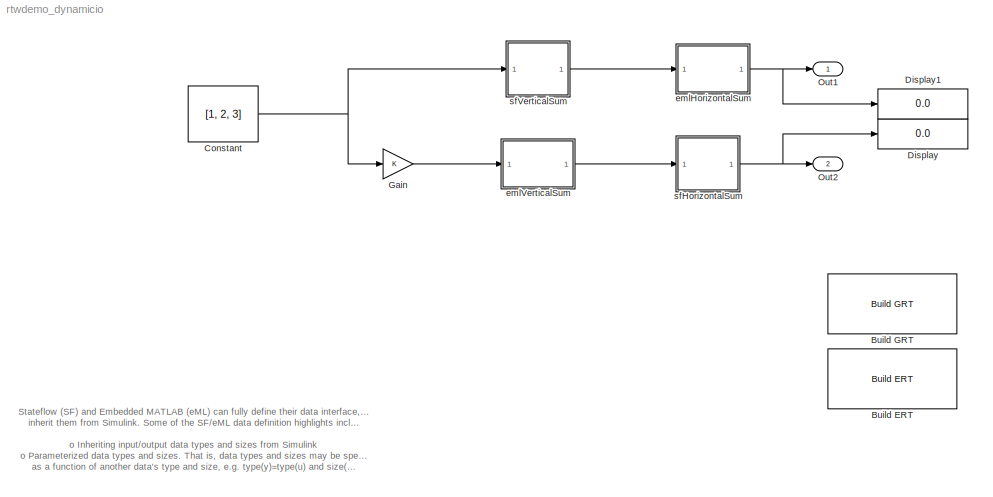
MODEL rtwdemo_dynamicio
KIND model
CONFIG PostLoadFcn = clear;K=Simulink.Parameter;K.Value=2;K.RTWInfo.StorageClass='SimulinkGlobal';
BLOCK [Reference] Build ERT  REF=rtwdemowidgets/Build ERT
  Ports = []
  ShowPortLabels = on
  SourceBlock = rtwdemowidgets/Build ERT
  attrib_overrides = {}
BLOCK [Reference] Build GRT  REF=rtwdemowidgets/Build GRT
  Ports = []
  ShowPortLabels = on
  SourceBlock = rtwdemowidgets/Build GRT
  attrib_overrides = {}
BLOCK [Constant] Constant
  OutDataTypeMode = single
  Value = [1, 2, 3]
  VectorParams1D = off
BLOCK [Display] Display
  Decimation = 1
  Ports = [1]
BLOCK [Display] Display1
  Decimation = 1
  Ports = [1]
BLOCK [Gain] Gain
  Gain = K
  SaturateOnIntegerOverflow = off
BLOCK [Outport] Out1
  BusOutputAsStruct = off
  IconDisplay = Port number
BLOCK [Outport] Out2
  BusOutputAsStruct = off
  IconDisplay = Port number
  Port = 2
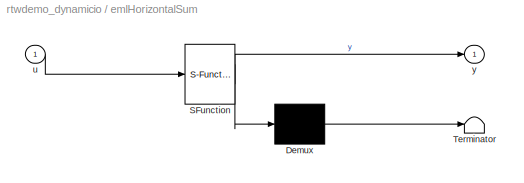
BLOCK [SubSystem] emlHorizontalSum
  MaskDescription = Embedded MATLAB block
  MaskDisplay = disp('fcn');
  MaskIconFrame = on
  MaskIconOpaque = off
  MaskIconRotate = none
  MaskIconUnits = autoscale
  MaskSelfModifiable = on
  MaskType = Stateflow
  MinAlgLoopOccurrences = off
  Ports = [1, 1]
  PropExecContextAcrossSSBoundary = on
  RTWSystemCode = Auto
  TreatAsAtomicUnit = off
BLOCK [Demux] emlHorizontalSum/ Demux 
  Outputs = 1
  Ports = [1, 1]
BLOCK [S-Function] emlHorizontalSum/ SFunction 
  FunctionName = sf_sfun
  PortCounts = [1 2]
  Ports = [1, 2]
  Tag = Stateflow S-Function rtwdemo_dynamicio 1
BLOCK [Terminator] emlHorizontalSum/ Terminator 
BLOCK [Inport] emlHorizontalSum/u
  IconDisplay = Port number
  LatchInput = off
  Port = 1
BLOCK [Outport] emlHorizontalSum/y
  BusOutputAsStruct = off
  IconDisplay = Port number
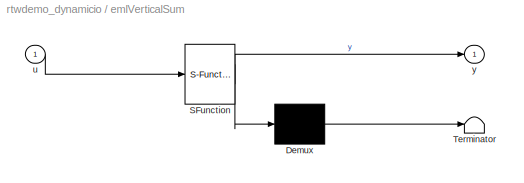
BLOCK [SubSystem] emlVerticalSum
  MaskDescription = Embedded MATLAB block
  MaskDisplay = disp('fcn');
  MaskIconFrame = on
  MaskIconOpaque = off
  MaskIconRotate = none
  MaskIconUnits = autoscale
  MaskSelfModifiable = on
  MaskType = Stateflow
  MinAlgLoopOccurrences = off
  Ports = [1, 1]
  PropExecContextAcrossSSBoundary = on
  RTWSystemCode = Auto
  TreatAsAtomicUnit = off
BLOCK [Demux] emlVerticalSum/ Demux 
  Outputs = 1
  Ports = [1, 1]
BLOCK [S-Function] emlVerticalSum/ SFunction 
  FunctionName = sf_sfun
  PortCounts = [1 2]
  Ports = [1, 2]
  Tag = Stateflow S-Function rtwdemo_dynamicio 2
BLOCK [Terminator] emlVerticalSum/ Terminator 
BLOCK [Inport] emlVerticalSum/u
  IconDisplay = Port number
  LatchInput = off
  Port = 1
BLOCK [Outport] emlVerticalSum/y
  BusOutputAsStruct = off
  IconDisplay = Port number
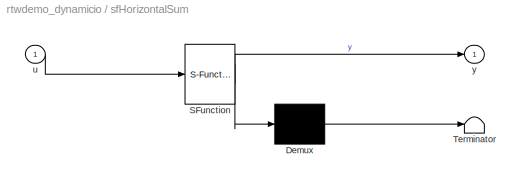
BLOCK [SubSystem] sfHorizontalSum
  MaskDescription = Stateflow diagram
  MaskDisplay = plot(sf('Private','sfblk','xIcon'),sf('Private','sfblk','yIcon'));text(0.5,0,sf('Private', 'sfblk', 'tIcon'),'HorizontalAl','Center','VerticalAl','Bottom');
  MaskIconFrame = off
  MaskIconOpaque = off
  MaskIconRotate = none
  MaskIconUnits = autoscale
  MaskSelfModifiable = on
  MaskType = Stateflow
  MinAlgLoopOccurrences = off
  Ports = [1, 1]
  PropExecContextAcrossSSBoundary = on
  RTWSystemCode = Auto
  TreatAsAtomicUnit = off
BLOCK [Demux] sfHorizontalSum/ Demux 
  Outputs = 1
  Ports = [1, 1]
BLOCK [S-Function] sfHorizontalSum/ SFunction 
  FunctionName = sf_sfun
  PortCounts = [1 2]
  Ports = [1, 2]
  Tag = Stateflow S-Function rtwdemo_dynamicio 4
BLOCK [Terminator] sfHorizontalSum/ Terminator 
BLOCK [Inport] sfHorizontalSum/u
  IconDisplay = Port number
  LatchInput = off
  Port = 1
BLOCK [Outport] sfHorizontalSum/y
  BusOutputAsStruct = off
  IconDisplay = Port number
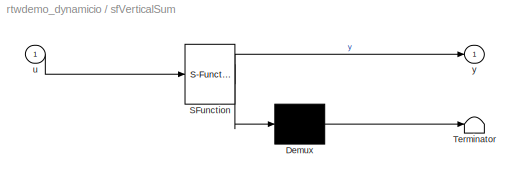
BLOCK [SubSystem] sfVerticalSum
  MaskDescription = Stateflow diagram
  MaskDisplay = plot(sf('Private','sfblk','xIcon'),sf('Private','sfblk','yIcon'));text(0.5,0,sf('Private', 'sfblk', 'tIcon'),'HorizontalAl','Center','VerticalAl','Bottom');
  MaskIconFrame = off
  MaskIconOpaque = off
  MaskIconRotate = none
  MaskIconUnits = autoscale
  MaskSelfModifiable = on
  MaskType = Stateflow
  MinAlgLoopOccurrences = off
  Ports = [1, 1]
  PropExecContextAcrossSSBoundary = on
  RTWSystemCode = Auto
  TreatAsAtomicUnit = off
BLOCK [Demux] sfVerticalSum/ Demux 
  Outputs = 1
  Ports = [1, 1]
BLOCK [S-Function] sfVerticalSum/ SFunction 
  FunctionName = sf_sfun
  Parameters = K
  PortCounts = [1 2]
  Ports = [1, 2]
  Tag = Stateflow S-Function rtwdemo_dynamicio 5
BLOCK [Terminator] sfVerticalSum/ Terminator 
BLOCK [Inport] sfVerticalSum/u
  IconDisplay = Port number
  LatchInput = off
  Port = 1
BLOCK [Outport] sfVerticalSum/y
  BusOutputAsStruct = off
  IconDisplay = Port number
ANNOTATION (root): Stateflow (SF) and Embedded MATLAB (eML) can fully define their data interface, or they can\ninherit them from Simulink. Some of the SF/eML data definition highlights include:\n\no Inheriting input/output data types and sizes from Simulink\no Parameterized data types and sizes. That is, data types and sizes may be specified\n as a function of another data's type and size, e.g. type(y)=type(u) and ...<+912ch>
NET Constant:1 -> Gain:1, sfVerticalSum:1
LINE Gain:1 -> emlVerticalSum:1
LINE emlHorizontalSum/ Demux :1 -> emlHorizontalSum/ Terminator :1
LINE emlHorizontalSum/ SFunction :1 -> emlHorizontalSum/ Demux :1
LINE emlHorizontalSum/ SFunction :2 -> emlHorizontalSum/y:1
LINE emlHorizontalSum/u:1 -> emlHorizontalSum/ SFunction :1
NET emlHorizontalSum:1 -> Display1:1, Out1:1
LINE emlVerticalSum/ Demux :1 -> emlVerticalSum/ Terminator :1
LINE emlVerticalSum/ SFunction :1 -> emlVerticalSum/ Demux :1
LINE emlVerticalSum/ SFunction :2 -> emlVerticalSum/y:1
LINE emlVerticalSum/u:1 -> emlVerticalSum/ SFunction :1
LINE emlVerticalSum:1 -> sfHorizontalSum:1
LINE sfHorizontalSum/ Demux :1 -> sfHorizontalSum/ Terminator :1
LINE sfHorizontalSum/ SFunction :1 -> sfHorizontalSum/ Demux :1
LINE sfHorizontalSum/ SFunction :2 -> sfHorizontalSum/y:1
LINE sfHorizontalSum/u:1 -> sfHorizontalSum/ SFunction :1
NET sfHorizontalSum:1 -> Display:1, Out2:1
LINE sfVerticalSum/ Demux :1 -> sfVerticalSum/ Terminator :1
LINE sfVerticalSum/ SFunction :1 -> sfVerticalSum/ Demux :1
LINE sfVerticalSum/ SFunction :2 -> sfVerticalSum/y:1
LINE sfVerticalSum/u:1 -> sfVerticalSum/ SFunction :1
LINE sfVerticalSum:1 -> emlHorizontalSum:1
note: NET lines group one-source signal fan-out (src -> all destinations, sorted); 1:1 wires keep LINE
CHART emlHorizontalSum states=1 transitions=1
  STATE_LABEL 'eML_blk_kernel()'
CHART emlVerticalSum states=1 transitions=1
  STATE_LABEL 'eML_blk_kernel()'
CHART sfHorizontalSum states=1 transitions=1
  STATE_LABEL 'y1 = f(u1)'
CHART sfVerticalSum states=1 transitions=1
  STATE_LABEL 'y1 = f(u1)'
